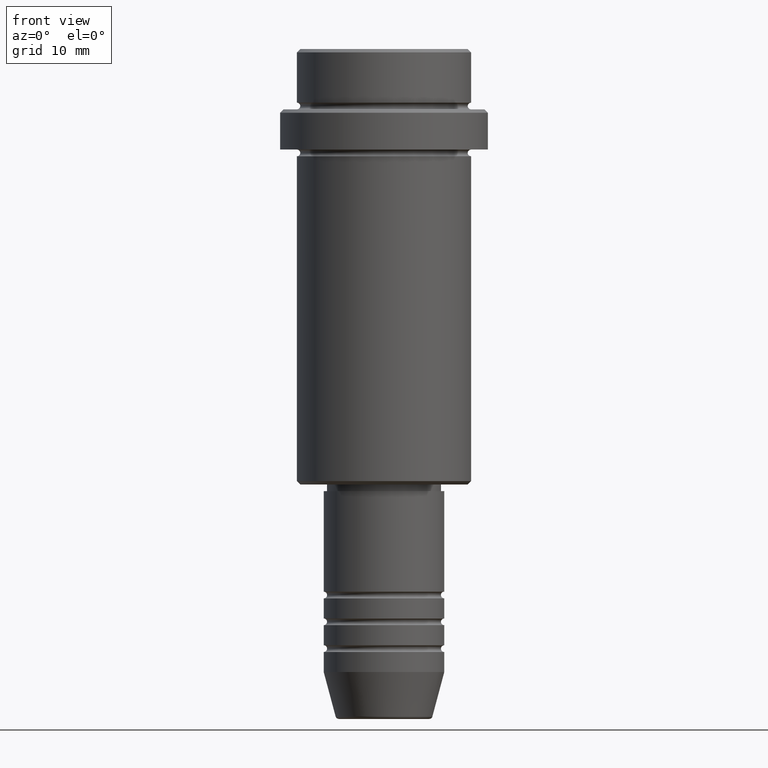
[diagram: clean part render]
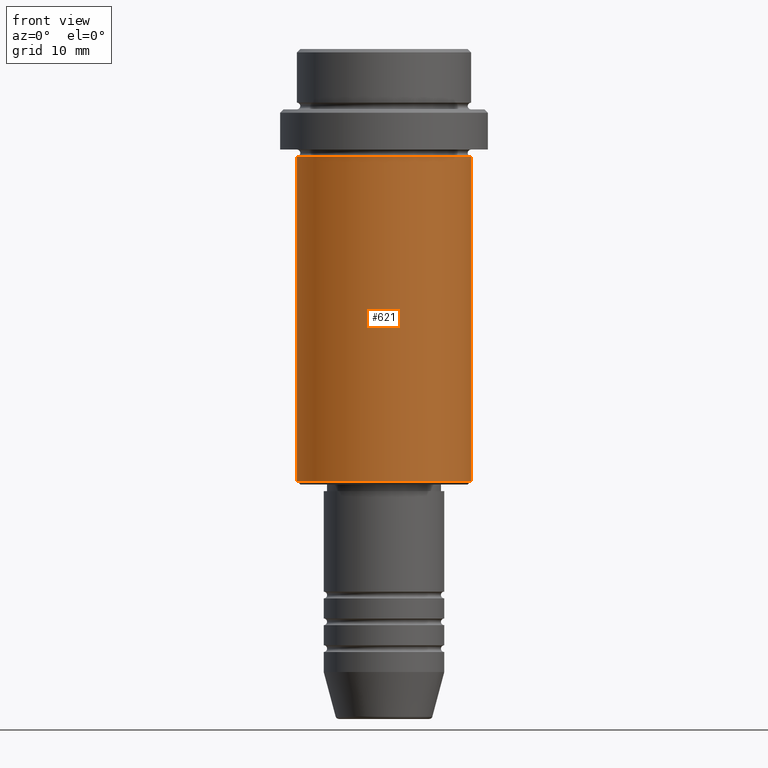
[diagram: same view with one face highlighted and labeled with its STEP entity id]
A machine part, front view. The second image highlights one B-rep face of the part: STEP entity #621.
In plain terms, the highlighted cylindrical surface (partial cylindrical patch) has radius 13 mm, axis along (-0, -0, 1).
Its self-contained STEP definition (entity closure, byte-faithful):
#21 = DIRECTION ( 'NONE',  ( 1.000000000000000000, 0.000000000000000000, 0.000000000000000000 ) ) ;
#62 = ORIENTED_EDGE ( 'NONE', *, *, #701, .F. ) ;
#74 = VECTOR ( 'NONE', #637, 1000.000000000000000 ) ;
#98 = CARTESIAN_POINT ( 'NONE',  ( -13.00000000000000000, 1.592040838891559095E-15, 0.000000000000000000 ) ) ;
#108 = CYLINDRICAL_SURFACE ( 'NONE', #1001, 13.00000000000000000 ) ;
#121 = DIRECTION ( 'NONE',  ( -0.000000000000000000, -0.000000000000000000, 1.000000000000000000 ) ) ;
#136 = CARTESIAN_POINT ( 'NONE',  ( 0.000000000000000000, 0.000000000000000000, -16.00000000000000000 ) ) ;
#151 = CARTESIAN_POINT ( 'NONE',  ( -13.00000000000000000, 1.592040838891559095E-15, -64.49999999999998579 ) ) ;
#203 = FACE_OUTER_BOUND ( 'NONE', #229, .T. ) ;
#229 = EDGE_LOOP ( 'NONE', ( #1058, #1384, #1007, #62 ) ) ;
#263 = CIRCLE ( 'NONE', #703, 13.00000000000000000 ) ;
#361 = VERTEX_POINT ( 'NONE', #1351 ) ;
#421 = CARTESIAN_POINT ( 'NONE',  ( 0.000000000000000000, 0.000000000000000000, 0.000000000000000000 ) ) ;
#429 = DIRECTION ( 'NONE',  ( -0.000000000000000000, -0.000000000000000000, 1.000000000000000000 ) ) ;
#534 = CARTESIAN_POINT ( 'NONE',  ( -13.00000000000000000, 1.592040838891559095E-15, -16.00000000000000000 ) ) ;
#535 = EDGE_CURVE ( 'NONE', #839, #899, #649, .T. ) ;
#536 = DIRECTION ( 'NONE',  ( -0.000000000000000000, -0.000000000000000000, 1.000000000000000000 ) ) ;
#621 = ADVANCED_FACE ( 'NONE', ( #203 ), #108, .T. ) ;
#637 = DIRECTION ( 'NONE',  ( -0.000000000000000000, -0.000000000000000000, 1.000000000000000000 ) ) ;
#642 = EDGE_CURVE ( 'NONE', #1365, #361, #990, .T. ) ;
#646 = CARTESIAN_POINT ( 'NONE',  ( 13.00000000000000000, 0.000000000000000000, -64.49999999999998579 ) ) ;
#649 = LINE ( 'NONE', #98, #74 ) ;
#701 = EDGE_CURVE ( 'NONE', #899, #361, #1337, .T. ) ;
#703 = AXIS2_PLACEMENT_3D ( 'NONE', #967, #706, #1394 ) ;
#706 = DIRECTION ( 'NONE',  ( -0.000000000000000000, -0.000000000000000000, 1.000000000000000000 ) ) ;
#723 = AXIS2_PLACEMENT_3D ( 'NONE', #136, #121, #21 ) ;
#817 = EDGE_CURVE ( 'NONE', #839, #1365, #263, .T. ) ;
#839 = VERTEX_POINT ( 'NONE', #151 ) ;
#899 = VERTEX_POINT ( 'NONE', #534 ) ;
#967 = CARTESIAN_POINT ( 'NONE',  ( 0.000000000000000000, 0.000000000000000000, -64.49999999999998579 ) ) ;
#976 = DIRECTION ( 'NONE',  ( 1.000000000000000000, 0.000000000000000000, 0.000000000000000000 ) ) ;
#990 = LINE ( 'NONE', #1400, #1356 ) ;
#1001 = AXIS2_PLACEMENT_3D ( 'NONE', #421, #536, #976 ) ;
#1007 = ORIENTED_EDGE ( 'NONE', *, *, #642, .T. ) ;
#1058 = ORIENTED_EDGE ( 'NONE', *, *, #535, .F. ) ;
#1337 = CIRCLE ( 'NONE', #723, 13.00000000000000000 ) ;
#1351 = CARTESIAN_POINT ( 'NONE',  ( 13.00000000000000000, 0.000000000000000000, -16.00000000000000000 ) ) ;
#1356 = VECTOR ( 'NONE', #429, 1000.000000000000000 ) ;
#1365 = VERTEX_POINT ( 'NONE', #646 ) ;
#1384 = ORIENTED_EDGE ( 'NONE', *, *, #817, .T. ) ;
#1394 = DIRECTION ( 'NONE',  ( -1.000000000000000000, 0.000000000000000000, 0.000000000000000000 ) ) ;
#1400 = CARTESIAN_POINT ( 'NONE',  ( 13.00000000000000000, 0.000000000000000000, 0.000000000000000000 ) ) ;